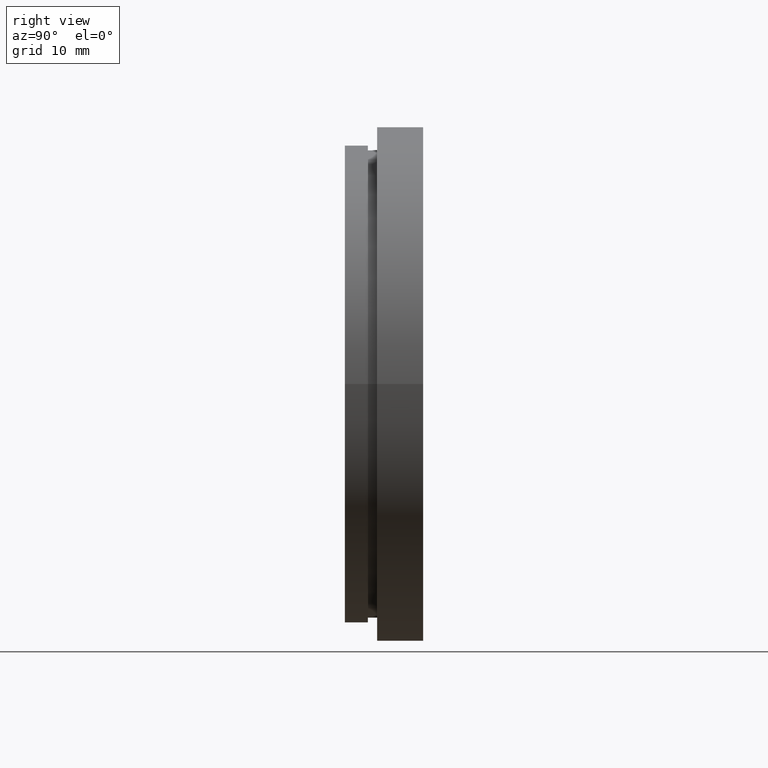
[diagram: clean part render]
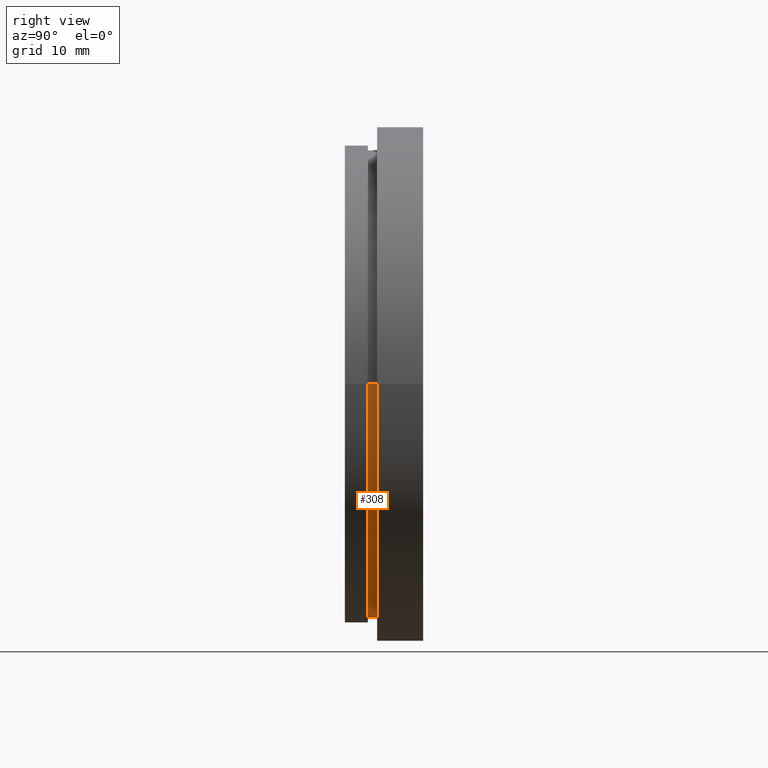
[diagram: same view with one face highlighted and labeled with its STEP entity id]
A machine part, right view. The second image highlights one B-rep face of the part: STEP entity #308.
In plain terms, the highlighted cylindrical surface (partial cylindrical patch) has radius 25.4 mm, axis along (-0, 1, -0).
Its self-contained STEP definition (entity closure, byte-faithful):
#9 = CARTESIAN_POINT ( 'NONE',  ( 0.0000000000000000000, 16.88601823708207700, 0.0000000000000000000 ) ) ;
#10 = EDGE_CURVE ( 'NONE', #100, #170, #419, .T. ) ;
#16 = CARTESIAN_POINT ( 'NONE',  ( -25.39999999999999900, 16.88601823708207300, 0.0000000000000000000 ) ) ;
#21 = CARTESIAN_POINT ( 'NONE',  ( 1.828579243164447600E-015, 1.954535588880333700, 0.0000000000000000000 ) ) ;
#30 = ORIENTED_EDGE ( 'NONE', *, *, #35, .T. ) ;
#35 = EDGE_CURVE ( 'NONE', #170, #189, #361, .T. ) ;
#38 = ORIENTED_EDGE ( 'NONE', *, *, #264, .F. ) ;
#58 = DIRECTION ( 'NONE',  ( -1.224646799147351000E-016, 1.000000000000000000, -0.0000000000000000000 ) ) ;
#60 = DIRECTION ( 'NONE',  ( -1.000000000000000000, -1.195183497228115300E-016, 0.0000000000000000000 ) ) ;
#71 = CARTESIAN_POINT ( 'NONE',  ( 25.39999999999999900, 2.954535588880337700, 3.110602869834276900E-015 ) ) ;
#100 = VERTEX_POINT ( 'NONE', #193 ) ;
#109 = CYLINDRICAL_SURFACE ( 'NONE', #253, 25.39999999999999900 ) ;
#122 = LINE ( 'NONE', #386, #431 ) ;
#128 = FACE_OUTER_BOUND ( 'NONE', #412, .T. ) ;
#131 = CARTESIAN_POINT ( 'NONE',  ( -25.39999999999999900, 2.954535588880331500, 0.0000000000000000000 ) ) ;
#132 = EDGE_CURVE ( 'NONE', #240, #189, #214, .T. ) ;
#141 = DIRECTION ( 'NONE',  ( -1.224646799147351000E-016, 1.000000000000000000, -0.0000000000000000000 ) ) ;
#161 = CARTESIAN_POINT ( 'NONE',  ( 1.706114563249712100E-015, 2.954535588880334600, 0.0000000000000000000 ) ) ;
#162 = DIRECTION ( 'NONE',  ( -1.224646799147351000E-016, 1.000000000000000000, -0.0000000000000000000 ) ) ;
#170 = VERTEX_POINT ( 'NONE', #200 ) ;
#189 = VERTEX_POINT ( 'NONE', #131 ) ;
#193 = CARTESIAN_POINT ( 'NONE',  ( 25.39999999999999900, 1.954535588880336600, 3.110602869834276900E-015 ) ) ;
#200 = CARTESIAN_POINT ( 'NONE',  ( -25.39999999999999100, 1.954535588880330600, 0.0000000000000000000 ) ) ;
#214 = CIRCLE ( 'NONE', #333, 25.39999999999999900 ) ;
#222 = DIRECTION ( 'NONE',  ( -1.000000000000000000, -1.195183497228115300E-016, 0.0000000000000000000 ) ) ;
#225 = DIRECTION ( 'NONE',  ( -1.224646799147351000E-016, 1.000000000000000000, -0.0000000000000000000 ) ) ;
#240 = VERTEX_POINT ( 'NONE', #71 ) ;
#253 = AXIS2_PLACEMENT_3D ( 'NONE', #9, #141, #274 ) ;
#264 = EDGE_CURVE ( 'NONE', #100, #240, #122, .T. ) ;
#274 = DIRECTION ( 'NONE',  ( -1.000000000000000000, -1.365923996832131600E-016, 0.0000000000000000000 ) ) ;
#277 = VECTOR ( 'NONE', #58, 1000.000000000000000 ) ;
#308 = ADVANCED_FACE ( 'NONE', ( #128 ), #109, .T. ) ;
#320 = ORIENTED_EDGE ( 'NONE', *, *, #10, .T. ) ;
#333 = AXIS2_PLACEMENT_3D ( 'NONE', #161, #225, #60 ) ;
#361 = LINE ( 'NONE', #16, #277 ) ;
#370 = AXIS2_PLACEMENT_3D ( 'NONE', #21, #376, #222 ) ;
#374 = ORIENTED_EDGE ( 'NONE', *, *, #132, .F. ) ;
#376 = DIRECTION ( 'NONE',  ( -1.224646799147351000E-016, 1.000000000000000000, -0.0000000000000000000 ) ) ;
#386 = CARTESIAN_POINT ( 'NONE',  ( 25.39999999999999900, 16.88601823708208000, 3.110602869834276900E-015 ) ) ;
#412 = EDGE_LOOP ( 'NONE', ( #38, #320, #30, #374 ) ) ;
#419 = CIRCLE ( 'NONE', #370, 25.39999999999999500 ) ;
#431 = VECTOR ( 'NONE', #162, 1000.000000000000000 ) ;